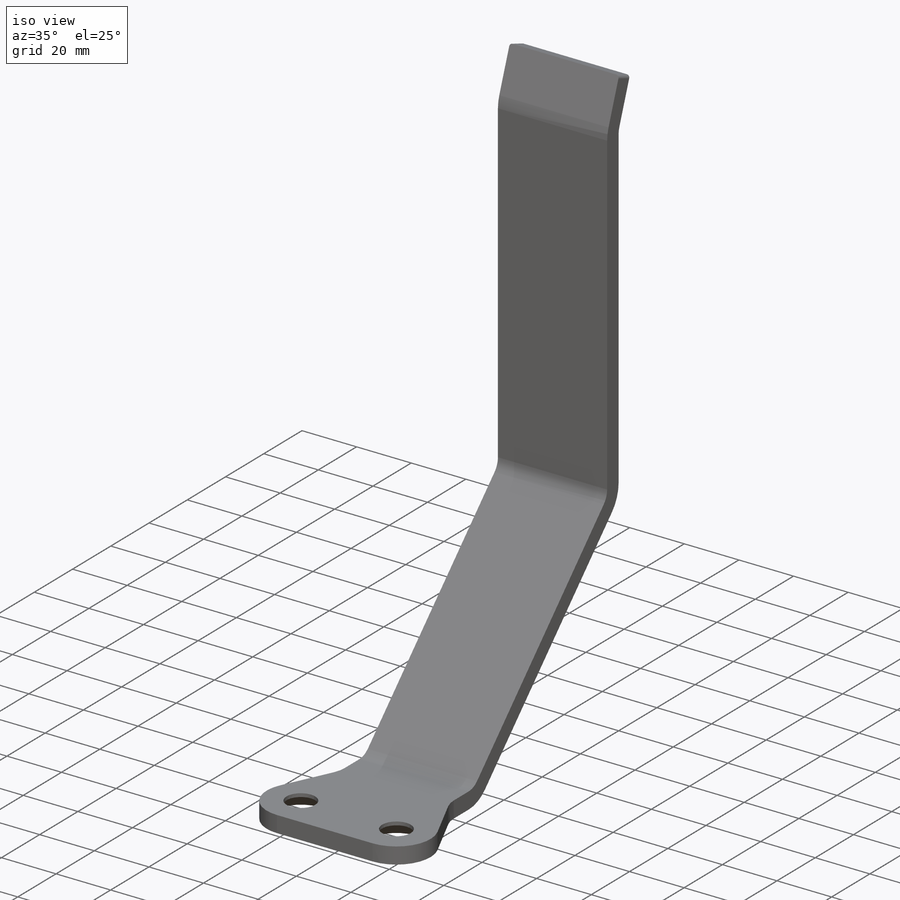
[diagram: iso view]
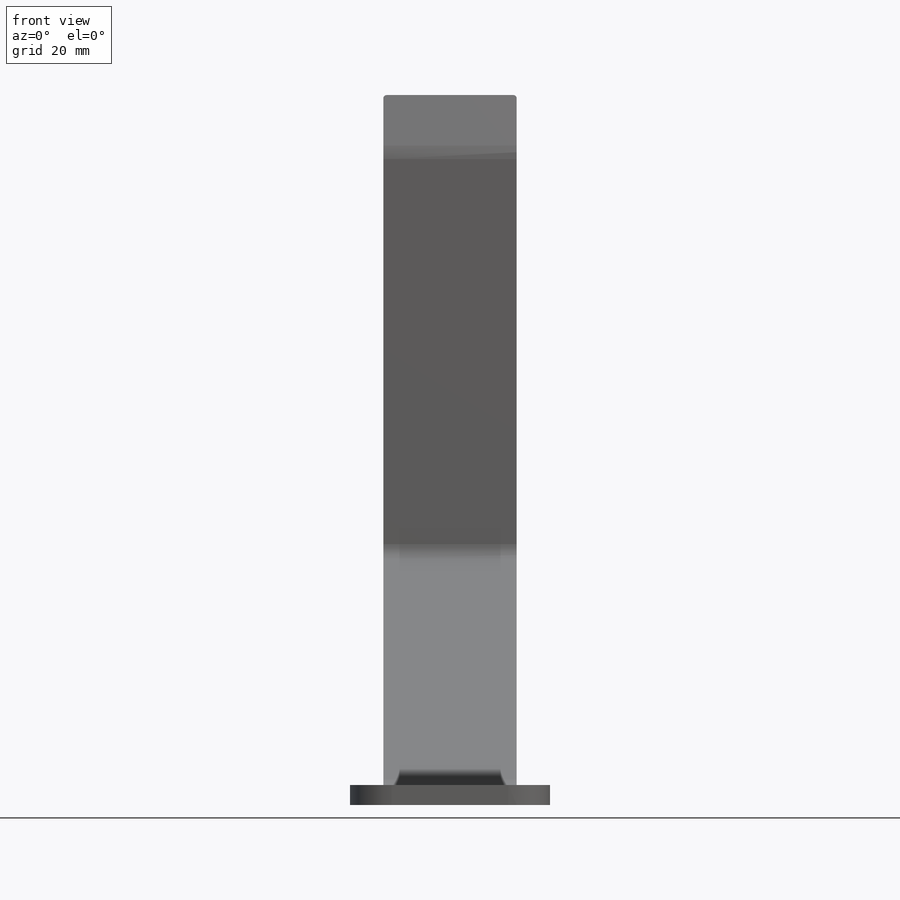
[diagram: front view]
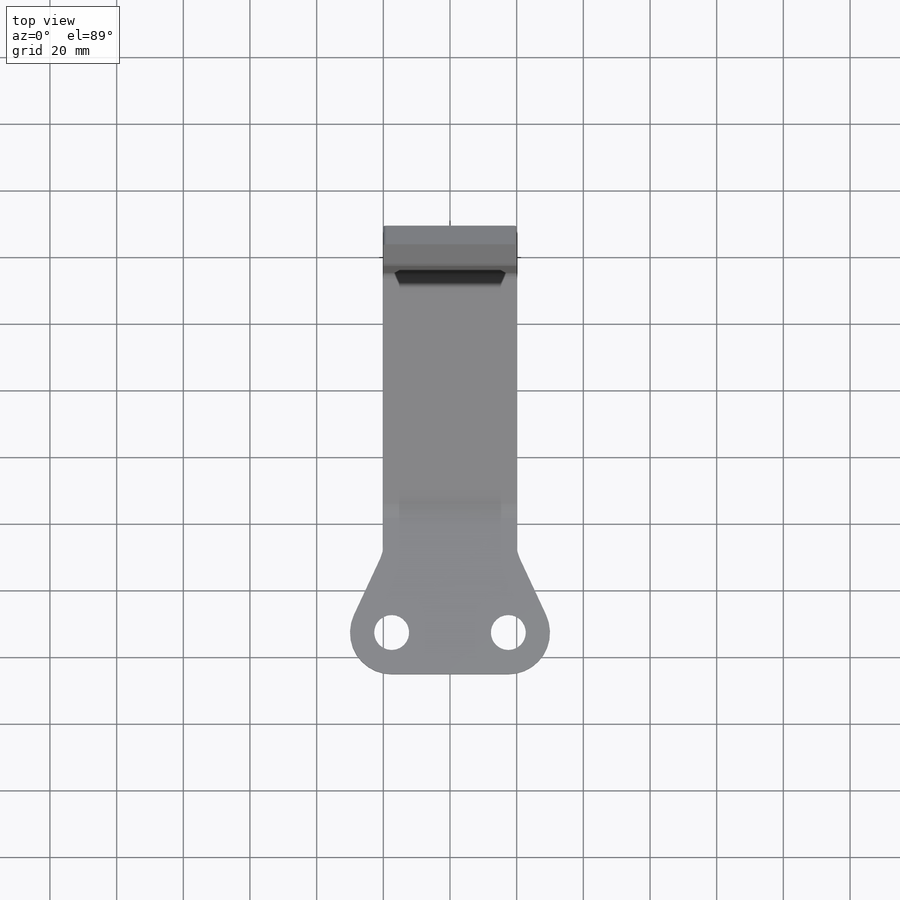
[diagram: top view]
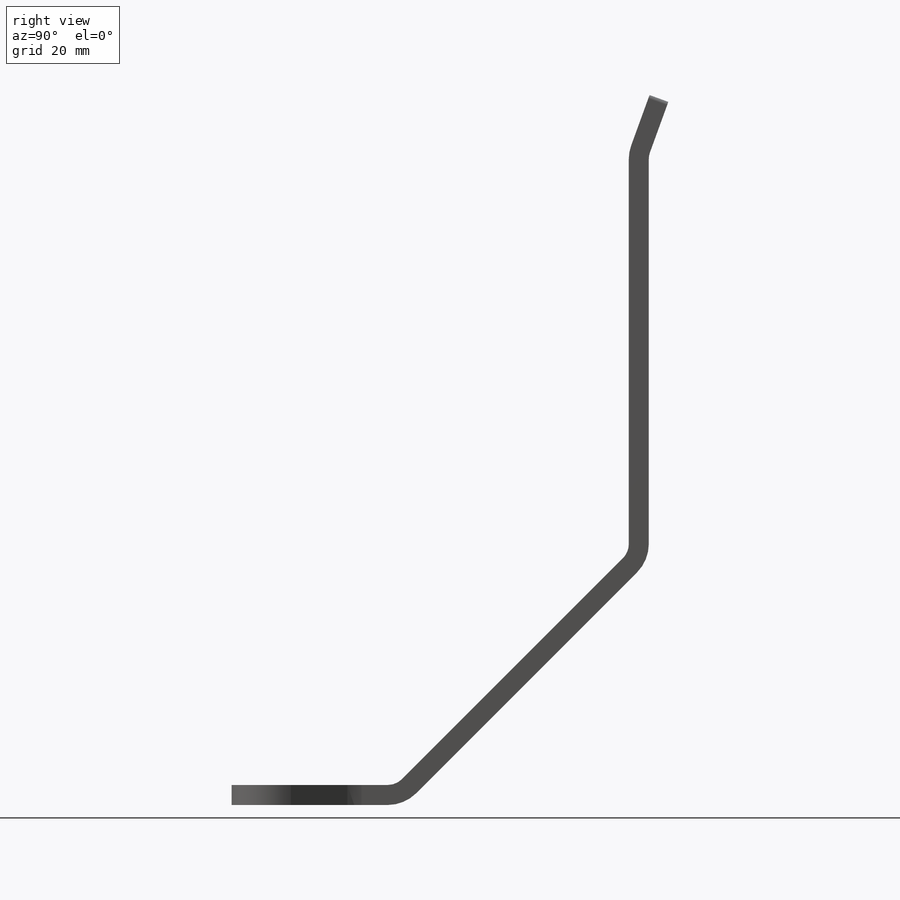
[diagram: right view]
SOLIDWORKS PART (.sldprt)
format: sldprt  version: not decoded by parser v0  size: 248,320 bytes
history: native  units: mm
features: sketch x4, plane x3, sheet_metal_op x3, material x1, extrude x1, chamfer x1 + 1 further entry (+10 scaffold rows collapsed)
feature tree (24):
  scaffold x10  (default folders/planes/origin — collapsed)
  material  "Material <not specified>"
  plane  "Plane1"
  plane  "Plane2"
  plane  "Plane3"
  "Origin"  ID=0
  sketch  "Sketch1"  dims[c1.D4=10.5mm c1.D5=8.5mm c1.D6=11.0mm c1.D19=0.75mm c1.D20=7.0mm c1.D22=8.25mm c1.D23=12.5mm c1.D24=3.0mm c1.D7=4.25mm c2.D19=3.0mm c2.D12=10.0mm c2.D20=12.5mm c2.D21=12.5mm c2.D27=3.0mm c2.D7=1.0mm c2.D1=~59.680844mm c3.D1=40.0deg c3.D2=12.5mm c3.D3=25.0mm c3.D7=15.0mm c3.D8=40.0mm c3.D9=42.0mm c3.D10=40.0mm c3.D11=35.0mm c3.D12=12.5mm c3.D13=262.0mm c3.D14=126.0mm c3.D15=0.5mm c3.D16=174.0mm c3.D17=20.0mm c3.D18=150.0mm c3.D21=3.0mm c3.D22=37.0mm c3.D25=50.0mm c3.D6=5.0mm c4.D15=36.5mm c4.D17=0.1mm c4.D3=~8.062035mm c5.D3=40.0deg c5.D20=78.5mm c6.D3=~9.701494mm c7.D3=25.0deg c7.D21=12.5mm c7.D2=12.5mm c7.D17=2.0mm c7.D13=260.0mm c8.D17=30.0mm c8.D21=~38.239378mm c8.D24=16.0mm c8.D8=12.5mm c9.D17=17.0mm c9.D26=25.0mm c9.D24=16.0mm c9.D28=~38.013156mm c9.D5=287.5mm c9.D6=17.5mm]
  extrude  "Extrude1"  Depth=6mm Thickness=6mm
  sheet_metal_op  "Sheet-Metal1"
  sketch  "Sharp-Sketch1"  dims[D1=0.0mm]
  sketch  "Flat-Sketch1"  dims[D1=0.0mm D4=45.0deg D5=1.0 D8=2.5mm D9=2.5mm]
  sheet_metal_op  "FlatBend6"
  sheet_metal_op  "FlatBend7"
  chamfer  "Chamfer1"  Distance=4.75mm Angle=45deg
  sketch  "Bukkelinier"
decode coverage: 5 of 9 modeling features carry decoded parameters; 1 rows unclassified (native names shown)
note: ~ marks probable driven/reference dimensions
note: suppression state not decoded; provenance and decode notes live in map.json
